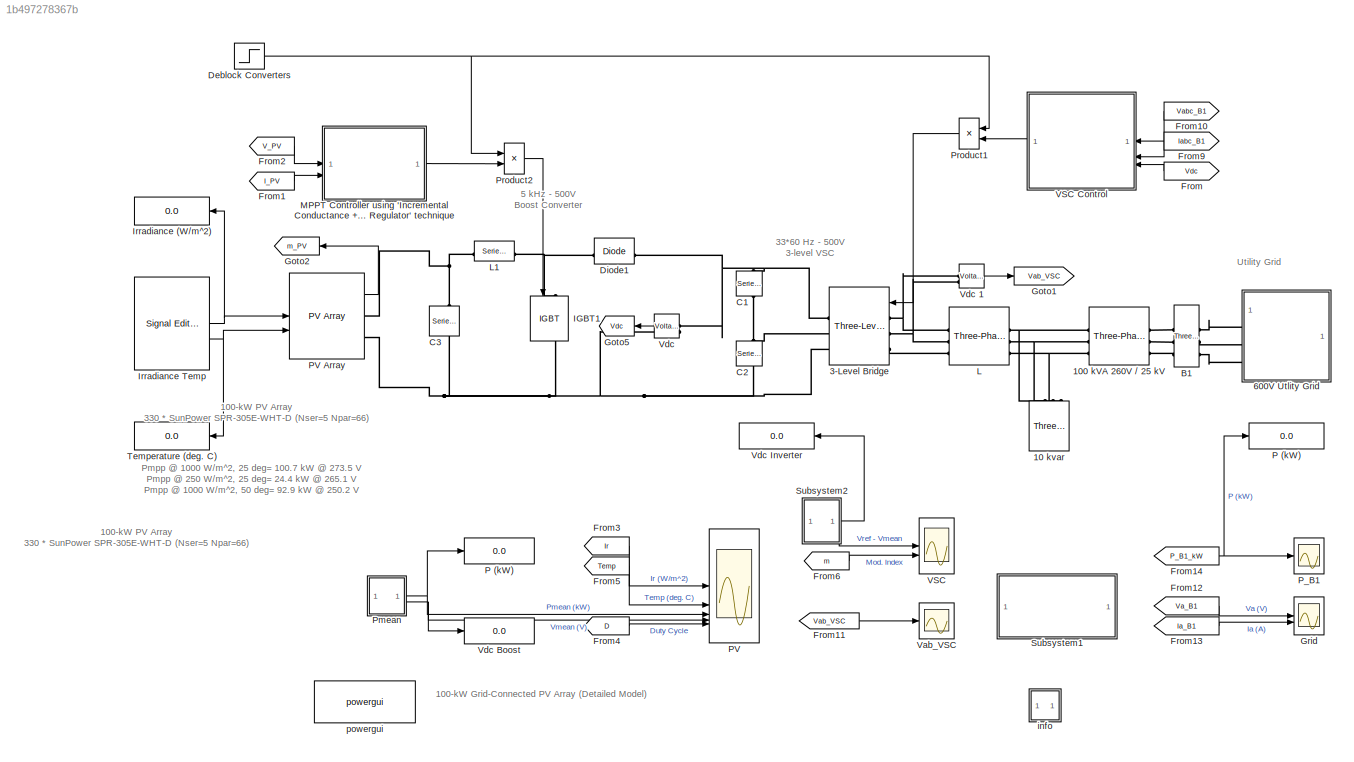
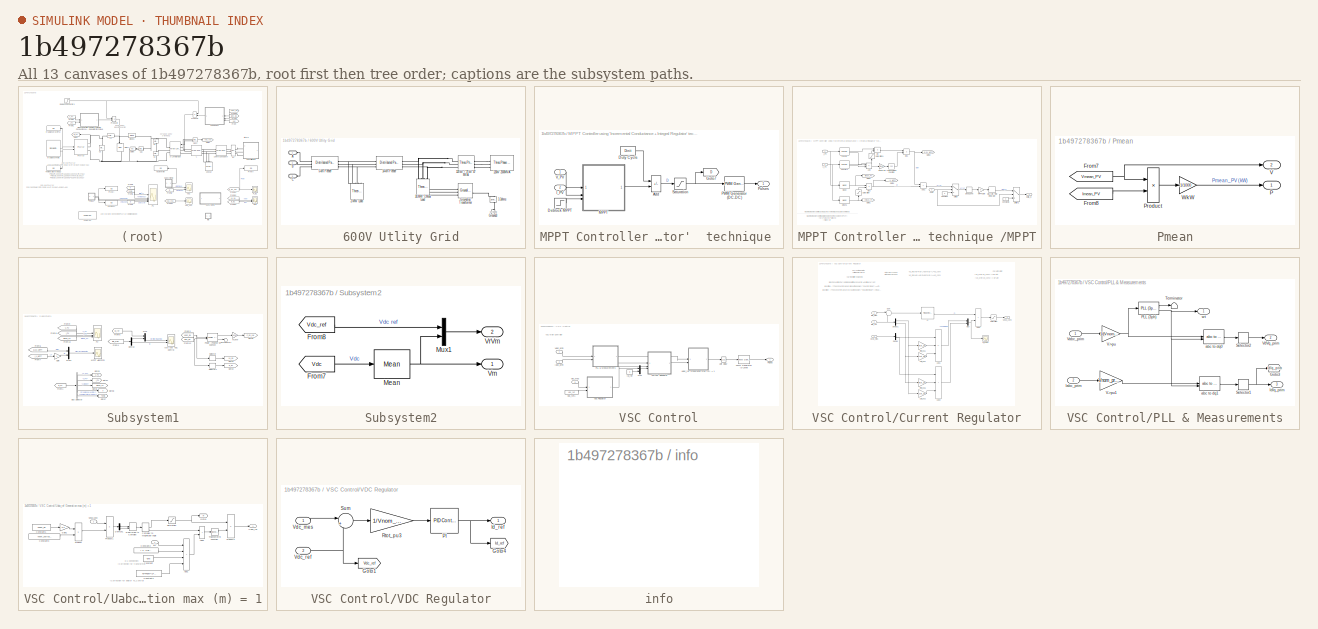
[diagram: thumbnail index - all 13 canvases of the model, root first then tree order]
MODEL slx_1b497278367b
KIND model
CONFIG AbsTol = auto
CONFIG EnableMultiTasking = off
CONFIG FixedStep = auto
CONFIG InitFcn = Ts_Power=1e-6;\nTs_Control=100e-6;
CONFIG MaxStep = auto
CONFIG MinStep = auto
CONFIG PreLoadFcn = Ts_Power=1e-6;\nTs_Control=100e-6;
CONFIG RelTol = 1e-3
CONFIG SampleTimeConstraint = Unconstrained
CONFIG SolverName = FixedStepDiscrete
CONFIG StartTime = 0.0
CONFIG StopTime = 2.5
BLOCK [Reference] 10 kvar  REF=spsThreePhaseSeriesRLCLoadLib/Three-Phase
Series RLC Load
  AttributesFormatString = \n
  NameLocation = right
  SourceBlock = spsThreePhaseSeriesRLCLoadLib/Three-Phase\nSeries RLC Load
  SourceType = Three-Phase Series RLC Load
BLOCK [Reference] 100 kVA 260V // 25 kV  REF=spsThreePhaseTransformerTwoWindingsLib/Three-Phase
Transformer
(Two Windings)
  AttributesFormatString = \n
  SourceBlock = spsThreePhaseTransformerTwoWindingsLib/Three-Phase\nTransformer\n(Two Windings)
  SourceType = Three-Phase Transformer (Two Windings)
BLOCK [Reference] 3-Level Bridge  REF=spsThreeLevelBridgeLib/Three-Level Bridge
  AttributesFormatString = \n
  SourceBlock = spsThreeLevelBridgeLib/Three-Level Bridge
  SourceType = Three-Level Bridge
BLOCK [SubSystem] 600V Utlity Grid
BLOCK [Reference] 600V Utlity Grid/120 kV // 25 kV 47 MVA  REF=spsThreePhaseTransformerTwoWindingsLib/Three-Phase
Transformer
(Two Windings)
  AttributesFormatString = \n
  SourceBlock = spsThreePhaseTransformerTwoWindingsLib/Three-Phase\nTransformer\n(Two Windings)
  SourceType = Three-Phase Transformer (Two Windings)
BLOCK [Reference] 600V Utlity Grid/120kV 2500MVA  REF=spsThreePhaseSourceLib/Three-Phase Source
  SourceBlock = spsThreePhaseSourceLib/Three-Phase Source
  SourceType = Three-Phase Source
BLOCK [Reference] 600V Utlity Grid/14-km Feeder  REF=spsDistributedParametersLineLib/Distributed Parameters Line
  SourceBlock = spsDistributedParametersLineLib/Distributed Parameters Line
  SourceType = Distributed Parameters Line
BLOCK [Reference] 600V Utlity Grid/2-MW Load  REF=spsThreePhaseParallelRLCLoadLib/Three-Phase
Parallel RLC Load
  AttributesFormatString = \n
  NameLocation = left
  SourceBlock = spsThreePhaseParallelRLCLoadLib/Three-Phase\nParallel RLC Load
  SourceType = Three-Phase Parallel RLC Load
BLOCK [Reference] 600V Utlity Grid/3.3ohms   REF=spsSeriesRLCBranchLib/Series RLC Branch
  NameLocation = right
  SourceBlock = spsSeriesRLCBranchLib/Series RLC Branch
  SourceType = Series RLC Branch
BLOCK [Reference] 600V Utlity Grid/30-MW 2-Mvar Load  REF=spsThreePhaseParallelRLCLoadLib/Three-Phase
Parallel RLC Load
  AttributesFormatString = \n
  NameLocation = left
  SourceBlock = spsThreePhaseParallelRLCLoadLib/Three-Phase\nParallel RLC Load
  SourceType = Three-Phase Parallel RLC Load
BLOCK [Reference] 600V Utlity Grid/5-km Feeder  REF=spsDistributedParametersLineLib/Distributed Parameters Line
  SourceBlock = spsDistributedParametersLineLib/Distributed Parameters Line
  SourceType = Distributed Parameters Line
BLOCK [PMIOPort] 600V Utlity Grid/A
  Side = Left
BLOCK [PMIOPort] 600V Utlity Grid/B
  Port = 2
  Side = Left
BLOCK [PMIOPort] 600V Utlity Grid/C
  Port = 3
  Side = Left
BLOCK [Reference] 600V Utlity Grid/Ground3  REF=spsGroundLib/Ground
  AttributesFormatString = \n
  NameLocation = right
  SourceBlock = spsGroundLib/Ground
  SourceType = Ground
BLOCK [Reference] 600V Utlity Grid/Grounding Transformer   REF=spsGroundingTransformerLib/Grounding
Transformer 
  SourceBlock = spsGroundingTransformerLib/Grounding\nTransformer
  SourceType = Grounding Transformer
BLOCK [Reference] B1  REF=spsThreePhaseVIMeasurementLib/Three-Phase
V-I Measurement
  SourceBlock = spsThreePhaseVIMeasurementLib/Three-Phase\nV-I Measurement
  SourceType = Three-Phase VI Measurement
BLOCK [Reference] C1  REF=spsSeriesRLCBranchLib/Series RLC Branch
  AttributesFormatString = \n
  NameLocation = left
  SourceBlock = spsSeriesRLCBranchLib/Series RLC Branch
  SourceType = Series RLC Branch
BLOCK [Reference] C2  REF=spsSeriesRLCBranchLib/Series RLC Branch
  AttributesFormatString = \n
  NameLocation = left
  SourceBlock = spsSeriesRLCBranchLib/Series RLC Branch
  SourceType = Series RLC Branch
BLOCK [Reference] C3  REF=spsSeriesRLCBranchLib/Series RLC Branch
  AttributesFormatString = \n
  NameLocation = left
  SourceBlock = spsSeriesRLCBranchLib/Series RLC Branch
  SourceType = Series RLC Branch
BLOCK [Step] Deblock Converters
  SampleTime = 0
  Time = 0.05
BLOCK [Reference] Diode1  REF=spsDiodeLib/Diode
  SourceBlock = spsDiodeLib/Diode
  SourceType = Diode
BLOCK [From] From
  GotoTag = Vdc
  TagVisibility = global
BLOCK [From] From1
  CloseFcn = tagdialog Close
  GotoTag = I_PV
  TagVisibility = global
BLOCK [From] From10
  CloseFcn = tagdialog Close
  GotoTag = Vabc_B1
  TagVisibility = global
BLOCK [From] From11
  CloseFcn = tagdialog Close
  GotoTag = Vab_VSC
  TagVisibility = global
BLOCK [From] From12
  CloseFcn = tagdialog Close
  GotoTag = Va_B1
  TagVisibility = global
BLOCK [From] From13
  CloseFcn = tagdialog Close
  GotoTag = Ia_B1
  TagVisibility = global
BLOCK [From] From14
  CloseFcn = tagdialog Close
  GotoTag = P_B1_kW
  TagVisibility = global
BLOCK [From] From2
  CloseFcn = tagdialog Close
  GotoTag = V_PV
  TagVisibility = global
BLOCK [From] From3
  CloseFcn = tagdialog Close
  GotoTag = Ir
  TagVisibility = global
BLOCK [From] From4
  CloseFcn = tagdialog Close
  GotoTag = D
  TagVisibility = global
BLOCK [From] From5
  CloseFcn = tagdialog Close
  GotoTag = Temp
  TagVisibility = global
BLOCK [From] From6
  CloseFcn = tagdialog Close
  GotoTag = m
  TagVisibility = global
BLOCK [From] From9
  CloseFcn = tagdialog Close
  GotoTag = Iabc_B1
  TagVisibility = global
BLOCK [Goto] Goto1
  GotoTag = Vab_VSC
  TagVisibility = global
BLOCK [Goto] Goto2
  GotoTag = m_PV
  TagVisibility = global
BLOCK [Goto] Goto5
  GotoTag = Vdc
  TagVisibility = global
BLOCK [Scope] Grid
  Floating = off
  NumInputPorts = 2
  ScopeSpecificationString = Simulink.scopes.TimeScopeBlockCfg('CurrentConfiguration', extmgr.ConfigurationSet(extmgr.Configuration('Core','General UI',true),extmgr.Configuration('Core','Source UI',true),extmgr.Configuration('Sources','WiredSimulink',true,'DataLoggingDecimation','20','DataLoggingDecimateData',true,'DataLoggingSaveFormat','Array'),extmgr.Configuration('Visuals','Time Domain',true,'SerializedDisplays',{struct('...<+2332ch>
BLOCK [Reference] IGBT1  REF=spsIGBTLib/IGBT
  NameLocation = left
  SourceBlock = spsIGBTLib/IGBT
  SourceType = IGBT
BLOCK [Display] Irradiance (W//m^2)
  Decimation = 1000
  Format = bank
BLOCK [Reference] Irradiance Temp  REF=SignalEditorBlockLib/Signal Editor
  SourceBlock = SignalEditorBlockLib/Signal Editor
  SourceType = SignalEditor
  UserDataPersistent = on
BLOCK [Reference] L  REF=spsThreePhaseSeriesRLCBranchLib/Three-Phase
Series RLC Branch
  AttributesFormatString = \n
  SourceBlock = spsThreePhaseSeriesRLCBranchLib/Three-Phase\nSeries RLC Branch
  SourceType = Three-Phase Series RLC Branch
BLOCK [Reference] L1  REF=spsSeriesRLCBranchLib/Series RLC Branch
  SourceBlock = spsSeriesRLCBranchLib/Series RLC Branch
  SourceType = Series RLC Branch
BLOCK [SubSystem] MPPT Controller using  'Incremental Conductance + Integral Regulator'  technique 
  NameLocation = top
BLOCK [Sum] MPPT Controller using  'Incremental Conductance + Integral Regulator'  technique /Add
  IconShape = rectangular
  Inputs = +-
BLOCK [Step] MPPT Controller using  'Incremental Conductance + Integral Regulator'  technique /Deblock MPPT
  SampleTime = 0
  Time = 0.4
BLOCK [Constant] MPPT Controller using  'Incremental Conductance + Integral Regulator'  technique /Duty Cycle
  NameLocation = top
  Value = Dinit
BLOCK [Goto] MPPT Controller using  'Incremental Conductance + Integral Regulator'  technique /Goto7
  GotoTag = D
  TagVisibility = global
BLOCK [Inport] MPPT Controller using  'Incremental Conductance + Integral Regulator'  technique /I_PV
  Port = 2
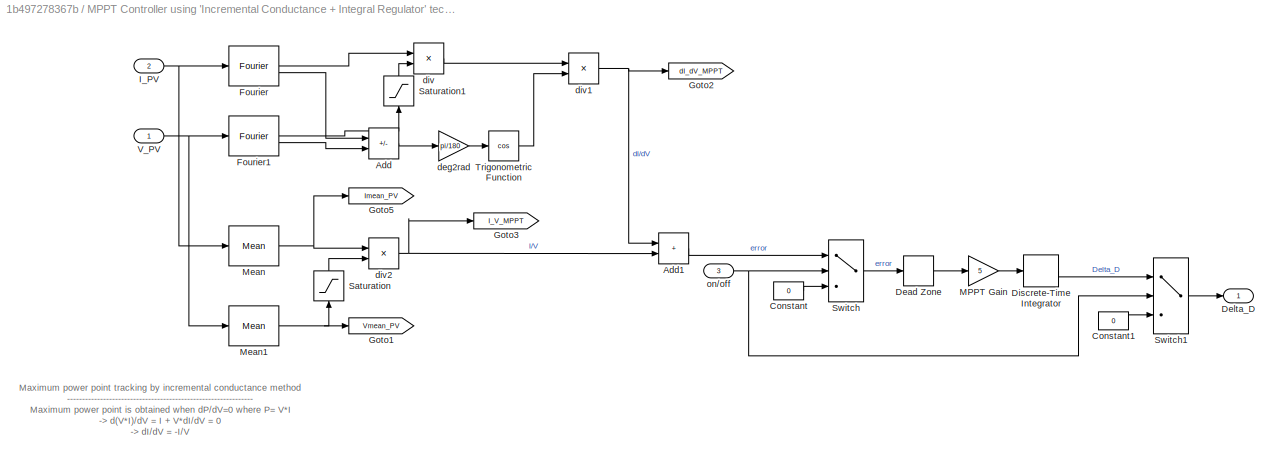
BLOCK [SubSystem] MPPT Controller using  'Incremental Conductance + Integral Regulator'  technique /MPPT
BLOCK [Sum] MPPT Controller using  'Incremental Conductance + Integral Regulator'  technique /MPPT/Add
  IconShape = rectangular
  Inputs = +-
BLOCK [Sum] MPPT Controller using  'Incremental Conductance + Integral Regulator'  technique /MPPT/Add1
  IconShape = rectangular
BLOCK [Constant] MPPT Controller using  'Incremental Conductance + Integral Regulator'  technique /MPPT/Constant
  Value = 0
BLOCK [Constant] MPPT Controller using  'Incremental Conductance + Integral Regulator'  technique /MPPT/Constant1
  Value = 0
BLOCK [DeadZone] MPPT Controller using  'Incremental Conductance + Integral Regulator'  technique /MPPT/Dead Zone
  LowerValue = -0.05
  UpperValue = 0.05
BLOCK [Outport] MPPT Controller using  'Incremental Conductance + Integral Regulator'  technique /MPPT/Delta_D
  VectorParamsAs1DForOutWhenUnconnected = off
BLOCK [DiscreteIntegrator] MPPT Controller using  'Incremental Conductance + Integral Regulator'  technique /MPPT/Discrete-Time Integrator
  ICPrevOutput = DiscIntNeverNeededParam
  ICPrevScaledInput = DiscIntNeverNeededParam
  LimitOutput = on
  LowerSaturationLimit = -1
  SampleTime = Ts_Control
  UpperSaturationLimit = 1
BLOCK [Reference] MPPT Controller using  'Incremental Conductance + Integral Regulator'  technique /MPPT/Fourier  REF=spsFourierLib/Fourier
  SourceBlock = spsFourierLib/Fourier
  SourceType = Fourier
BLOCK [Reference] MPPT Controller using  'Incremental Conductance + Integral Regulator'  technique /MPPT/Fourier1  REF=spsFourierLib/Fourier
  SourceBlock = spsFourierLib/Fourier
  SourceType = Fourier
BLOCK [Goto] MPPT Controller using  'Incremental Conductance + Integral Regulator'  technique /MPPT/Goto1
  GotoTag = Vmean_PV
  TagVisibility = global
BLOCK [Goto] MPPT Controller using  'Incremental Conductance + Integral Regulator'  technique /MPPT/Goto2
  GotoTag = dI_dV_MPPT
  TagVisibility = global
BLOCK [Goto] MPPT Controller using  'Incremental Conductance + Integral Regulator'  technique /MPPT/Goto3
  GotoTag = I_V_MPPT
  TagVisibility = global
BLOCK [Goto] MPPT Controller using  'Incremental Conductance + Integral Regulator'  technique /MPPT/Goto5
  GotoTag = Imean_PV
  TagVisibility = global
BLOCK [Inport] MPPT Controller using  'Incremental Conductance + Integral Regulator'  technique /MPPT/I_PV
  Port = 2
BLOCK [Gain] MPPT Controller using  'Incremental Conductance + Integral Regulator'  technique /MPPT/MPPT Gain
  Gain = 5
BLOCK [Reference] MPPT Controller using  'Incremental Conductance + Integral Regulator'  technique /MPPT/Mean  REF=spsMeanLib/Mean
  SourceBlock = spsMeanLib/Mean
  SourceType = Mean
BLOCK [Reference] MPPT Controller using  'Incremental Conductance + Integral Regulator'  technique /MPPT/Mean1  REF=spsMeanLib/Mean
  SourceBlock = spsMeanLib/Mean
  SourceType = Mean
BLOCK [Saturate] MPPT Controller using  'Incremental Conductance + Integral Regulator'  technique /MPPT/Saturation
  LowerLimit = eps
  NameLocation = right
  UpperLimit = inf
BLOCK [Saturate] MPPT Controller using  'Incremental Conductance + Integral Regulator'  technique /MPPT/Saturation1
  LowerLimit = eps
  NameLocation = right
  UpperLimit = inf
BLOCK [Switch] MPPT Controller using  'Incremental Conductance + Integral Regulator'  technique /MPPT/Switch
  InputSameDT = off
  SaturateOnIntegerOverflow = off
  Threshold = 0.5
BLOCK [Switch] MPPT Controller using  'Incremental Conductance + Integral Regulator'  technique /MPPT/Switch1
  InputSameDT = off
  SaturateOnIntegerOverflow = off
  Threshold = 0.5
BLOCK [Trigonometry] MPPT Controller using  'Incremental Conductance + Integral Regulator'  technique /MPPT/Trigonometric Function
  Operator = cos
BLOCK [Inport] MPPT Controller using  'Incremental Conductance + Integral Regulator'  technique /MPPT/V_PV
BLOCK [Gain] MPPT Controller using  'Incremental Conductance + Integral Regulator'  technique /MPPT/deg2rad
  Gain = pi/180
BLOCK [Product] MPPT Controller using  'Incremental Conductance + Integral Regulator'  technique /MPPT/div
  Inputs = */
  RndMeth = Zero
BLOCK [Product] MPPT Controller using  'Incremental Conductance + Integral Regulator'  technique /MPPT/div1
  Inputs = **
  RndMeth = Zero
BLOCK [Product] MPPT Controller using  'Incremental Conductance + Integral Regulator'  technique /MPPT/div2
  Inputs = */
  RndMeth = Zero
BLOCK [Inport] MPPT Controller using  'Incremental Conductance + Integral Regulator'  technique /MPPT/on//off
  Port = 3
BLOCK [Reference] MPPT Controller using  'Incremental Conductance + Integral Regulator'  technique /PWM Generator (DC-DC)  REF=spsPWMGeneratorDCDCLib/PWM Generator
(DC-DC)
  SourceBlock = spsPWMGeneratorDCDCLib/PWM Generator\n(DC-DC)
  SourceType = PWM Generator (DC-DC)
BLOCK [Outport] MPPT Controller using  'Incremental Conductance + Integral Regulator'  technique /Pulses
  VectorParamsAs1DForOutWhenUnconnected = off
BLOCK [Saturate] MPPT Controller using  'Incremental Conductance + Integral Regulator'  technique /Saturation
  LowerLimit = 0
  UpperLimit = 1
BLOCK [Inport] MPPT Controller using  'Incremental Conductance + Integral Regulator'  technique /V_PV
BLOCK [Display] P (kW)
  Decimation = 2000
  Format = bank
BLOCK [Display] P (kW) 
  Decimation = 2000
  Format = bank
BLOCK [Scope] PV
  Floating = off
  NumInputPorts = 5
  ScopeSpecificationString = Simulink.scopes.TimeScopeBlockCfg('CurrentConfiguration', extmgr.ConfigurationSet(extmgr.Configuration('Core','General UI',true),extmgr.Configuration('Core','Source UI',true),extmgr.Configuration('Sources','WiredSimulink',true,'DataLoggingDecimation','100','DataLoggingDecimateData',true,'DataLoggingSaveFormat','Array'),extmgr.Configuration('Visuals','Time Domain',true,'SerializedDisplays',{struct(...<+4421ch>
BLOCK [Reference] PV Array  REF=spsPVArrayLib/PV Array
  SourceBlock = spsPVArrayLib/PV Array
  SourceType = PV array
BLOCK [Scope] P_B1
  Floating = off
  NumInputPorts = 1
  ScopeSpecificationString = Simulink.scopes.TimeScopeBlockCfg('CurrentConfiguration', extmgr.ConfigurationSet(extmgr.Configuration('Core','General UI',true),extmgr.Configuration('Core','Source UI',true),extmgr.Configuration('Sources','WiredSimulink',true,'DataLoggingDecimation','100','DataLoggingDecimateData',true,'DataLoggingSaveFormat','Array'),extmgr.Configuration('Visuals','Time Domain',true,'SerializedDisplays',{struct(...<+1655ch>
BLOCK [SubSystem] Pmean
BLOCK [From] Pmean/From7
  GotoTag = Vmean_PV
  TagVisibility = global
BLOCK [From] Pmean/From8
  GotoTag = Imean_PV
  TagVisibility = global
BLOCK [Outport] Pmean/P
  VectorParamsAs1DForOutWhenUnconnected = off
BLOCK [Product] Pmean/Product
  RndMeth = Zero
BLOCK [Outport] Pmean/V
  Port = 2
  VectorParamsAs1DForOutWhenUnconnected = off
BLOCK [Gain] Pmean/WkW
  Gain = 1/1000
BLOCK [Product] Product1
  RndMeth = Zero
BLOCK [Product] Product2
  RndMeth = Zero
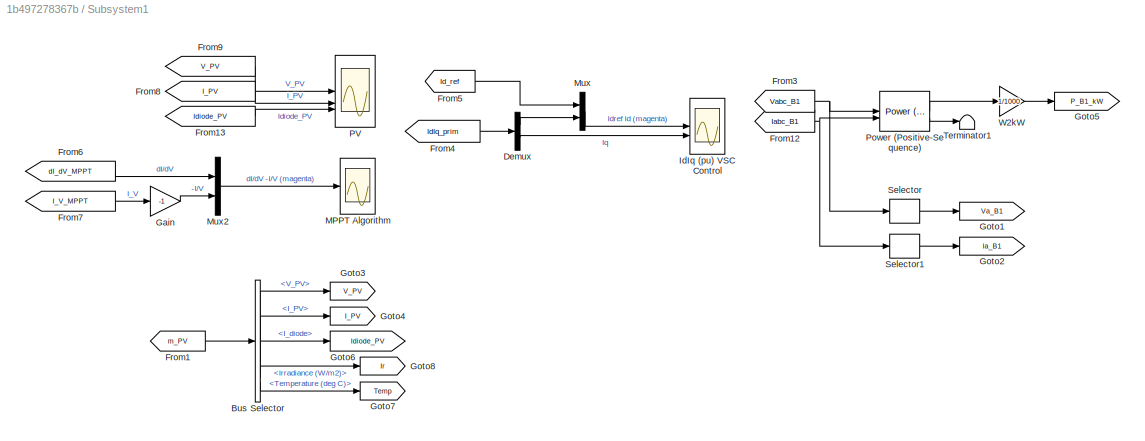
BLOCK [SubSystem] Subsystem1
  NameLocation = top
BLOCK [BusSelector] Subsystem1/Bus Selector
  OutputSignals = V_PV,I_PV,I_diode,Irradiance (W/m2),Temperature (deg C)
BLOCK [Demux] Subsystem1/Demux
  Outputs = 2
BLOCK [From] Subsystem1/From1
  GotoTag = m_PV
  TagVisibility = global
BLOCK [From] Subsystem1/From12
  CloseFcn = tagdialog Close
  GotoTag = Iabc_B1
  TagVisibility = global
BLOCK [From] Subsystem1/From13
  GotoTag = Idiode_PV
  TagVisibility = global
BLOCK [From] Subsystem1/From3
  CloseFcn = tagdialog Close
  GotoTag = Vabc_B1
  TagVisibility = global
BLOCK [From] Subsystem1/From4
  CloseFcn = tagdialog Close
  GotoTag = IdIq_prim
  TagVisibility = global
BLOCK [From] Subsystem1/From5
  CloseFcn = tagdialog Close
  GotoTag = Id_ref
  TagVisibility = global
BLOCK [From] Subsystem1/From6
  GotoTag = dI_dV_MPPT
  TagVisibility = global
BLOCK [From] Subsystem1/From7
  GotoTag = I_V_MPPT
  TagVisibility = global
BLOCK [From] Subsystem1/From8
  GotoTag = I_PV
  TagVisibility = global
BLOCK [From] Subsystem1/From9
  GotoTag = V_PV
  TagVisibility = global
BLOCK [Gain] Subsystem1/Gain
  Gain = -1
BLOCK [Goto] Subsystem1/Goto1
  GotoTag = Va_B1
  TagVisibility = global
BLOCK [Goto] Subsystem1/Goto2
  GotoTag = Ia_B1
  TagVisibility = global
BLOCK [Goto] Subsystem1/Goto3
  GotoTag = V_PV
  TagVisibility = global
BLOCK [Goto] Subsystem1/Goto4
  GotoTag = I_PV
  TagVisibility = global
BLOCK [Goto] Subsystem1/Goto5
  GotoTag = P_B1_kW
  TagVisibility = global
BLOCK [Goto] Subsystem1/Goto6
  GotoTag = Idiode_PV
  TagVisibility = global
BLOCK [Goto] Subsystem1/Goto7
  GotoTag = Temp
  TagVisibility = global
BLOCK [Goto] Subsystem1/Goto8
  GotoTag = Ir
  TagVisibility = global
BLOCK [Scope] Subsystem1/IdIq (pu) VSC Control
  Floating = off
  NumInputPorts = 2
  ScopeSpecificationString = C++SS(StrPVP('Location','[188, 365, 760, 912]'),StrPVP('Open','off'),MxPVP('AxesTitles',54,'struct(''axes1'',''%<SignalLabel>'',''axes2'',''%<SignalLabel>'')'),MxPVP('ScopeGraphics',57,'struct(''FigureColor'',''[0.5 0.5 0.5]'',''AxesColor'',''[0 0 0]'',''AxesTickColor'',''[1 1 1]'',''LineColors'',''[1 1 0;1 0 1;0 1 1;1 0 0;0 1 0;0 0 1]'',''LineStyles'',''-|-|-|-|-|-'',''LineWidths'',''[0.5 0.5 0.5...<+319ch>
BLOCK [Scope] Subsystem1/MPPT Algorithm
  Floating = off
  NumInputPorts = 1
  ScopeSpecificationString = C++SS(StrPVP('Location','[188, 365, 512, 604]'),StrPVP('Open','off'),MxPVP('AxesTitles',54,'struct(''axes1'',''%<SignalLabel>'')'),MxPVP('ScopeGraphics',57,'struct(''FigureColor'',''[0.5 0.5 0.5]'',''AxesColor'',''[0 0 0]'',''AxesTickColor'',''[1 1 1]'',''LineColors'',''[1 1 0;1 0 1;0 1 1;1 0 0;0 1 0;0 0 1]'',''LineStyles'',''-|-|-|-|-|-'',''LineWidths'',''[0.5 0.5 0.5 0.5 0.5 0.5]'',''MarkerStyle...<+246ch>
BLOCK [Mux] Subsystem1/Mux
  DisplayOption = bar
  Inputs = 2
BLOCK [Mux] Subsystem1/Mux2
  DisplayOption = bar
  Inputs = 2
BLOCK [Scope] Subsystem1/PV
  Floating = off
  NumInputPorts = 3
  ScopeSpecificationString = C++SS(StrPVP('Location','[188, 365, 635, 838]'),StrPVP('Open','off'),MxPVP('AxesTitles',54,'struct(''axes1'',''%<SignalLabel>'',''axes2'',''%<SignalLabel>'',''axes3'',''%<SignalLabel>'')'),MxPVP('ScopeGraphics',57,'struct(''FigureColor'',''[0.5 0.5 0.5]'',''AxesColor'',''[0 0 0]'',''AxesTickColor'',''[1 1 1]'',''LineColors'',''[1 1 0;1 0 1;0 1 1;1 0 0;0 1 0;0 0 1]'',''LineStyles'',''-|-|-|-|-|-'',...<+353ch>
BLOCK [Reference] Subsystem1/Power (Positive-Sequence)  REF=spsPowerPositiveSequenceLib/Power
(Positive-Sequence)
  SourceBlock = spsPowerPositiveSequenceLib/Power\n(Positive-Sequence)
  SourceType = Power (Positive-Sequence)
BLOCK [Selector] Subsystem1/Selector
  IndexOptions = Index vector (dialog)
  Indices = [1]
  InputPortWidth = 3
  OutputSizes = 1
BLOCK [Selector] Subsystem1/Selector1
  IndexOptions = Index vector (dialog)
  Indices = [1]
  InputPortWidth = 3
  OutputSizes = 1
BLOCK [Terminator] Subsystem1/Terminator1
  NameLocation = top
BLOCK [Gain] Subsystem1/W2kW
  Gain = 1/1000
BLOCK [SubSystem] Subsystem2
BLOCK [From] Subsystem2/From7
  CloseFcn = tagdialog Close
  GotoTag = Vdc
  TagVisibility = global
BLOCK [From] Subsystem2/From8
  CloseFcn = tagdialog Close
  GotoTag = Vdc_ref
  TagVisibility = global
BLOCK [Reference] Subsystem2/Mean  REF=spsMeanLib/Mean
  SourceBlock = spsMeanLib/Mean
  SourceType = Mean
BLOCK [Mux] Subsystem2/Mux1
  DisplayOption = bar
  Inputs = 2
BLOCK [Outport] Subsystem2/Vm
  VectorParamsAs1DForOutWhenUnconnected = off
BLOCK [Outport] Subsystem2/VrVm
  Port = 2
  VectorParamsAs1DForOutWhenUnconnected = off
BLOCK [Display] Temperature (deg. C)
  Decimation = 1000
  Format = bank
BLOCK [Scope] VSC
  Floating = off
  NumInputPorts = 2
  ScopeSpecificationString = Simulink.scopes.TimeScopeBlockCfg('CurrentConfiguration', extmgr.ConfigurationSet(extmgr.Configuration('Core','General UI',true),extmgr.Configuration('Core','Source UI',true),extmgr.Configuration('Sources','WiredSimulink',true,'DataLoggingDecimation','100','DataLoggingDecimateData',true,'DataLoggingSaveFormat','Array'),extmgr.Configuration('Visuals','Time Domain',true,'SerializedDisplays',{struct(...<+2360ch>
BLOCK [SubSystem] VSC Control
  NameLocation = top
BLOCK [SubSystem] VSC Control/Current Regulator
BLOCK [Sum] VSC Control/Current Regulator/Add1
  IconShape = rectangular
  Inputs = ++-
BLOCK [Sum] VSC Control/Current Regulator/Add2
  IconShape = rectangular
BLOCK [Sum] VSC Control/Current Regulator/Add3
  IconShape = rectangular
  Inputs = +++
BLOCK [Demux] VSC Control/Current Regulator/Demux
  Outputs = 2
BLOCK [Demux] VSC Control/Current Regulator/Demux1
  Outputs = 2
BLOCK [Inport] VSC Control/Current Regulator/IdIq_mes
  Port = 2
  PortDimensions = 2
BLOCK [Inport] VSC Control/Current Regulator/IdIq_ref
  Port = 3
  PortDimensions = 2
BLOCK [Gain] VSC Control/Current Regulator/Ltot_pu1
  Gain = Ltot_pu
  OutDataTypeStr = Inherit: Same as input
  ParamDataTypeStr = Inherit: Same as input
  SaturateOnIntegerOverflow = on
BLOCK [Gain] VSC Control/Current Regulator/Ltot_pu2
  Gain = Ltot_pu
  OutDataTypeStr = Inherit: Same as input
  ParamDataTypeStr = Inherit: Same as input
  SaturateOnIntegerOverflow = on
BLOCK [Mux] VSC Control/Current Regulator/Mux
  DisplayOption = bar
  Inputs = 2
BLOCK [Reference] VSC Control/Current Regulator/PI  REF=slpidlib/PID Controller
  SourceBlock = slpidlib/PID Controller
  SourceType = PID 1dof
BLOCK [Scope] VSC Control/Current Regulator/PI_Ireg1
  Floating = off
  NumInputPorts = 1
  ScopeSpecificationString = C++SS(StrPVP('Location','[188, 365, 512, 604]'),StrPVP('Open','off'),MxPVP('AxesTitles',54,'struct(''axes1'',''%<SignalLabel>'')'),StrPVP('ShowLegends','off'),StrPVP('LimitDataPoints','off'),StrPVP('ScrollMode','off'),StrPVP('DataFormat','Array'),StrPVP('Decimation','1'),StrPVP('BlockParamSampleInput','off'))
BLOCK [Gain] VSC Control/Current Regulator/Rtot_pu1
  Gain = Rtot_pu
  NameLocation = top
  OutDataTypeStr = Inherit: Same as input
  ParamDataTypeStr = Inherit: Same as input
  SaturateOnIntegerOverflow = on
BLOCK [Gain] VSC Control/Current Regulator/Rtot_pu5
  Gain = Rtot_pu
  NameLocation = top
  OutDataTypeStr = Inherit: Same as input
  ParamDataTypeStr = Inherit: Same as input
  SaturateOnIntegerOverflow = on
BLOCK [Saturate] VSC Control/Current Regulator/Saturation
  LowerLimit = -2
  UpperLimit = 2
BLOCK [Sum] VSC Control/Current Regulator/Sum
  Inputs = |-+
BLOCK [Outport] VSC Control/Current Regulator/VdVq_conv
  VectorParamsAs1DForOutWhenUnconnected = off
BLOCK [Inport] VSC Control/Current Regulator/VdVq_mes
  PortDimensions = 2
BLOCK [Inport] VSC Control/Iabc_prim
  Port = 2
  PortDimensions = 3
BLOCK [Constant] VSC Control/Iq_ref
  Value = 0
BLOCK [Mux] VSC Control/Mux
  DisplayOption = bar
  Inputs = 2
BLOCK [SubSystem] VSC Control/PLL & Measurements
BLOCK [Goto] VSC Control/PLL & Measurements/Goto3
  GotoTag = IdIq_prim
  TagVisibility = global
BLOCK [Inport] VSC Control/PLL & Measurements/Iabc_prim
  Port = 2
BLOCK [Outport] VSC Control/PLL & Measurements/IdIq_prim
  Port = 3
  VectorParamsAs1DForOutWhenUnconnected = off
BLOCK [Reference] VSC Control/PLL & Measurements/PLL (3ph)  REF=spsPLL3phLib/PLL
(3ph)
  SourceBlock = spsPLL3phLib/PLL\n(3ph)
  SourceType = PLL (3ph)
BLOCK [Selector] VSC Control/PLL & Measurements/Selector1
  IndexOptions = Index vector (dialog)
  Indices = [1 2]
  InputPortWidth = 3
  OutputSizes = 1
BLOCK [Selector] VSC Control/PLL & Measurements/Selector2
  IndexOptions = Index vector (dialog)
  Indices = [1 2]
  InputPortWidth = 3
  OutputSizes = 1
BLOCK [Terminator] VSC Control/PLL & Measurements/Terminator
BLOCK [Gain] VSC Control/PLL & Measurements/V->pu
  Gain = 1/(Vnom_prim*sqrt(2)/sqrt(3))
  OutDataTypeStr = Inherit: Same as input
  ParamDataTypeStr = Inherit: Same as input
  SaturateOnIntegerOverflow = on
BLOCK [Gain] VSC Control/PLL & Measurements/V->pu1
  Gain = Vnom_prim*sqrt(3)/Pnom/sqrt(2)
  OutDataTypeStr = Inherit: Same as input
  ParamDataTypeStr = Inherit: Same as input
  SaturateOnIntegerOverflow = on
BLOCK [Inport] VSC Control/PLL & Measurements/Vabc_prim
BLOCK [Outport] VSC Control/PLL & Measurements/VdVq_prim
  Port = 2
  VectorParamsAs1DForOutWhenUnconnected = off
BLOCK [Reference] VSC Control/PLL & Measurements/abc to dq0  REF=spsabctodq0Lib/abc to dq0
  SourceBlock = spsabctodq0Lib/abc to dq0
  SourceType = abc to dq0 Transformation
BLOCK [Reference] VSC Control/PLL & Measurements/abc to dq1  REF=spsabctodq0Lib/abc to dq0
  SourceBlock = spsabctodq0Lib/abc to dq0
  SourceType = abc to dq0 Transformation
BLOCK [Outport] VSC Control/PLL & Measurements/wt
  VectorParamsAs1DForOutWhenUnconnected = off
BLOCK [Reference] VSC Control/PWM Generator (3-Level)  REF=spsPWMGenerator3LevelLib/PWM Generator
(3-Level)
  SourceBlock = spsPWMGenerator3LevelLib/PWM Generator\n(3-Level)
  SourceType = PWM Generator (3-Level)
BLOCK [Outport] VSC Control/Pulses
  NameLocation = top
  VectorParamsAs1DForOutWhenUnconnected = off
BLOCK [SubSystem] VSC Control/Uabc_ref Generation max (m) = 1
BLOCK [Sum] VSC Control/Uabc_ref Generation max (m) = 1/Add1
  IconShape = rectangular
  Inputs = ++++
BLOCK [Sum] VSC Control/Uabc_ref Generation max (m) = 1/Add2
  IconShape = rectangular
BLOCK [ComplexToMagnitudeAngle] VSC Control/Uabc_ref Generation max (m) = 1/Complex to Magnitude-Angle
BLOCK [Constant] VSC Control/Uabc_ref Generation max (m) = 1/Constant
  Value = -pi/6
BLOCK [Constant] VSC Control/Uabc_ref Generation max (m) = 1/Constant1
  Value = Vnom_dc
BLOCK [Constant] VSC Control/Uabc_ref Generation max (m) = 1/Constant2
  Value = [ 0  -2*pi/3  2*pi/3  ]
BLOCK [Constant] VSC Control/Uabc_ref Generation max (m) = 1/Constant3
  Value = Vnom_sec*sqrt(2)/sqrt(3)
BLOCK [Constant] VSC Control/Uabc_ref Generation max (m) = 1/Constant4
  Value = Ts*Fnom*(2*pi)
BLOCK [Demux] VSC Control/Uabc_ref Generation max (m) = 1/Demux1
  Outputs = 2
BLOCK [Gain] VSC Control/Uabc_ref Generation max (m) = 1/Gain1
  Gain = 1/2
BLOCK [Goto] VSC Control/Uabc_ref Generation max (m) = 1/Goto1
  GotoTag = m
  TagVisibility = global
BLOCK [Product] VSC Control/Uabc_ref Generation max (m) = 1/Product
  Inputs = */
  RndMeth = Zero
BLOCK [Product] VSC Control/Uabc_ref Generation max (m) = 1/Product1
  Inputs = */
  RndMeth = Zero
BLOCK [Product] VSC Control/Uabc_ref Generation max (m) = 1/Product2
  Inputs = **
  RndMeth = Zero
BLOCK [RealImagToComplex] VSC Control/Uabc_ref Generation max (m) = 1/Real-Imag to Complex
BLOCK [Saturate] VSC Control/Uabc_ref Generation max (m) = 1/Saturation
  LowerLimit = 0
  UpperLimit = 1
BLOCK [Trigonometry] VSC Control/Uabc_ref Generation max (m) = 1/Trigonometric Function
BLOCK [Outport] VSC Control/Uabc_ref Generation max (m) = 1/Uabc_ref
  VectorParamsAs1DForOutWhenUnconnected = off
BLOCK [Inport] VSC Control/Uabc_ref Generation max (m) = 1/VdVq_conv
  Port = 2
BLOCK [Inport] VSC Control/Uabc_ref Generation max (m) = 1/wt
BLOCK [UnitDelay] VSC Control/Unit Delay
  HasFrameUpgradeWarning = on
  SampleTime = Ts_Control
BLOCK [SubSystem] VSC Control/VDC Regulator
BLOCK [Goto] VSC Control/VDC Regulator/Goto1
  GotoTag = Vdc_ref
  TagVisibility = global
BLOCK [Goto] VSC Control/VDC Regulator/Goto4
  GotoTag = Id_ref
  TagVisibility = global
BLOCK [Outport] VSC Control/VDC Regulator/Id_ref
  InitialOutput = 0
  SampleTime = Ts
  VectorParamsAs1DForOutWhenUnconnected = off
BLOCK [Reference] VSC Control/VDC Regulator/PI  REF=slpidlib/PID Controller
  SourceBlock = slpidlib/PID Controller
  SourceType = PID 1dof
BLOCK [Gain] VSC Control/VDC Regulator/Rtot_pu3
  Gain = 1/Vnom_dc
  OutDataTypeStr = Inherit: Same as input
  ParamDataTypeStr = Inherit: Same as input
  SaturateOnIntegerOverflow = on
BLOCK [Sum] VSC Control/VDC Regulator/Sum
  Inputs = |+-
BLOCK [Inport] VSC Control/VDC Regulator/Vdc_mes
  PortDimensions = 1
BLOCK [Inport] VSC Control/VDC Regulator/Vdc_ref
  Port = 2
  PortDimensions = 1
BLOCK [Inport] VSC Control/Vabc_prim
  PortDimensions = 3
BLOCK [Inport] VSC Control/Vdc_mes
  Port = 3
  PortDimensions = 1
BLOCK [Constant] VSC Control/Vdc_ref1
  Value = Vdc_ref
BLOCK [Scope] Vab_VSC
  Floating = off
  NumInputPorts = 1
  ScopeSpecificationString = Simulink.scopes.TimeScopeBlockCfg('CurrentConfiguration', extmgr.ConfigurationSet(extmgr.Configuration('Core','General UI',true),extmgr.Configuration('Core','Source UI',true),extmgr.Configuration('Sources','WiredSimulink',true,'DataLoggingDecimation','10','DataLoggingDecimateData',true,'DataLoggingSaveFormat','Array'),extmgr.Configuration('Visuals','Time Domain',true,'SerializedDisplays',{struct('...<+1650ch>
BLOCK [Reference] Vdc   REF=spsVoltageMeasurementLib/Voltage Measurement
  AttributesFormatString = \n
  NameLocation = top
  SourceBlock = spsVoltageMeasurementLib/Voltage Measurement
  SourceType = Voltage Measurement
  Tag = PoWeRsYsTeMmEaSuReMeNt
BLOCK [Reference] Vdc 1  REF=spsVoltageMeasurementLib/Voltage Measurement
  AttributesFormatString = \n
  NameLocation = top
  SourceBlock = spsVoltageMeasurementLib/Voltage Measurement
  SourceType = Voltage Measurement
  Tag = PoWeRsYsTeMmEaSuReMeNt
BLOCK [Display] Vdc Boost
  Decimation = 2000
  Format = bank
BLOCK [Display] Vdc Inverter
  Decimation = 2000
  Format = bank
BLOCK [SubSystem] info
  OpenFcn = showExample("simscapeelectricalsps/PVArrayGridExample")
BLOCK [Reference] powergui  REF=spspowerguiLib/powergui
  Priority = 1
  SourceBlock = spspowerguiLib/powergui
  SourceType = PSB option menu block
ANNOTATION (root): Utility Grid
ANNOTATION (root): 100-kW PV Array 330 * SunPower SPR-305E-WHT-D (Nser=5 Npar=66)
ANNOTATION (root): 100-kW Grid-Connected PV Array (Detailed Model)
ANNOTATION (root): 33*60 Hz - 500V 3-level VSC
ANNOTATION (root): 5 kHz - 500V Boost Converter
ANNOTATION (root): Pmpp @ 1000 W/m^2, 25 deg= 100.7 kW @ 273.5 V Pmpp @ 250 W/m^2, 25 deg= 24.4 kW @ 265.1 V Pmpp @ 1000 W/m^2, 50 deg= 92.9 kW @ 250.2 V
ANNOTATION MPPT Controller using  'Incremental Conductance + Integral Regulator'  technique /MPPT: Maximum power point tracking by incremental conductance method -------------------------------------------------------------- Maximum power point is obtained when dP/dV=0 where P= V*I -> d(V*I)/dV = I + V*dI/dV = 0 -> dI/dV = -I/V dI, dV = fundamental components of I and V ripples measured with a sliding time window T_MPPT I , V = mean values of V and I measured with a sliding time window T_MPPT T...<+96ch>
ANNOTATION VSC Control: VSC Main Controller
ANNOTATION VSC Control/Current Regulator: (Vd_prim - Vd_conv) ~= + Iq * Ltot
ANNOTATION VSC Control/Current Regulator: (Vq_prim - Vq_conv) ~ = - Id * Ltot
ANNOTATION VSC Control/Current Regulator: Current Regulator (with feedforward)
ANNOTATION VSC Control/Current Regulator: For Ltot >> Rtot :
ANNOTATION VSC Control/Current Regulator: Id positive --> The converter generates active power ("Inverter mode") = Active Power P positive
ANNOTATION VSC Control/Current Regulator: Iq positive --> The converter absorbs reactive power ("Inductive mode") = Reactive Power Q negative
ANNOTATION VSC Control/Current Regulator: Ltot = Lxfo + Lchoke Rtot = Rxfo + Rchoke
ANNOTATION VSC Control/Current Regulator: Sign Convention: Current going out of the converter = positive current
ANNOTATION VSC Control/Current Regulator: Vd_mes + Id*R - Iq*L + deriv(Id)*L= Vd_conv
ANNOTATION VSC Control/Current Regulator: Vq_mes + Id*L + Iq*R + deriv(Iq)*L= Vq_conv
ANNOTATION VSC Control/Current Regulator: harmonic filter neglected
ANNOTATION VSC Control/Uabc_ref Generation max (m) = 1: (Correction for delai of Ts_Control)
ANNOTATION VSC Control/Uabc_ref Generation max (m) = 1: (Correction for transformer D1 connection)
NET Deblock Converters:1 -> Product1:1, Product2:1
LINE From10:1 -> VSC Control:1
LINE From11:1 -> Vab_VSC:1
LINE From12:1 -> Grid:1
LINE From13:1 -> Grid:2
NET From14:1 -> P (kW):1, P_B1:1
LINE From1:1 -> MPPT Controller using  'Incremental Conductance + Integral Regulator'  technique :2
LINE From2:1 -> MPPT Controller using  'Incremental Conductance + Integral Regulator'  technique :1
LINE From3:1 -> PV:1
LINE From4:1 -> PV:5
LINE From5:1 -> PV:2
LINE From6:1 -> VSC:2
LINE From9:1 -> VSC Control:2
LINE From:1 -> VSC Control:3
NET Irradiance Temp:1 -> Irradiance (W//m^2):1, PV Array:1
NET Irradiance Temp:2 -> PV Array:2, Temperature (deg. C):1
LINE MPPT Controller using  'Incremental Conductance + Integral Regulator'  technique /Add:1 -> MPPT Controller using  'Incremental Conductance + Integral Regulator'  technique /Saturation:1
LINE MPPT Controller using  'Incremental Conductance + Integral Regulator'  technique /Deblock MPPT:1 -> MPPT Controller using  'Incremental Conductance + Integral Regulator'  technique /MPPT:3
LINE MPPT Controller using  'Incremental Conductance + Integral Regulator'  technique /Duty Cycle:1 -> MPPT Controller using  'Incremental Conductance + Integral Regulator'  technique /Add:1
LINE MPPT Controller using  'Incremental Conductance + Integral Regulator'  technique /I_PV:1 -> MPPT Controller using  'Incremental Conductance + Integral Regulator'  technique /MPPT:2
LINE MPPT Controller using  'Incremental Conductance + Integral Regulator'  technique /MPPT/Add1:1 -> MPPT Controller using  'Incremental Conductance + Integral Regulator'  technique /MPPT/Switch:1
LINE MPPT Controller using  'Incremental Conductance + Integral Regulator'  technique /MPPT/Add:1 -> MPPT Controller using  'Incremental Conductance + Integral Regulator'  technique /MPPT/deg2rad:1
LINE MPPT Controller using  'Incremental Conductance + Integral Regulator'  technique /MPPT/Constant1:1 -> MPPT Controller using  'Incremental Conductance + Integral Regulator'  technique /MPPT/Switch1:3
LINE MPPT Controller using  'Incremental Conductance + Integral Regulator'  technique /MPPT/Constant:1 -> MPPT Controller using  'Incremental Conductance + Integral Regulator'  technique /MPPT/Switch:3
LINE MPPT Controller using  'Incremental Conductance + Integral Regulator'  technique /MPPT/Dead Zone:1 -> MPPT Controller using  'Incremental Conductance + Integral Regulator'  technique /MPPT/MPPT Gain:1
LINE MPPT Controller using  'Incremental Conductance + Integral Regulator'  technique /MPPT/Discrete-Time Integrator:1 -> MPPT Controller using  'Incremental Conductance + Integral Regulator'  technique /MPPT/Switch1:1
LINE MPPT Controller using  'Incremental Conductance + Integral Regulator'  technique /MPPT/Fourier1:1 -> MPPT Controller using  'Incremental Conductance + Integral Regulator'  technique /MPPT/Saturation1:1
LINE MPPT Controller using  'Incremental Conductance + Integral Regulator'  technique /MPPT/Fourier1:2 -> MPPT Controller using  'Incremental Conductance + Integral Regulator'  technique /MPPT/Add:2
LINE MPPT Controller using  'Incremental Conductance + Integral Regulator'  technique /MPPT/Fourier:1 -> MPPT Controller using  'Incremental Conductance + Integral Regulator'  technique /MPPT/div:1
LINE MPPT Controller using  'Incremental Conductance + Integral Regulator'  technique /MPPT/Fourier:2 -> MPPT Controller using  'Incremental Conductance + Integral Regulator'  technique /MPPT/Add:1
NET MPPT Controller using  'Incremental Conductance + Integral Regulator'  technique /MPPT/I_PV:1 -> MPPT Controller using  'Incremental Conductance + Integral Regulator'  technique /MPPT/Fourier:1, MPPT Controller using  'Incremental Conductance + Integral Regulator'  technique /MPPT/Mean:1
LINE MPPT Controller using  'Incremental Conductance + Integral Regulator'  technique /MPPT/MPPT Gain:1 -> MPPT Controller using  'Incremental Conductance + Integral Regulator'  technique /MPPT/Discrete-Time Integrator:1
NET MPPT Controller using  'Incremental Conductance + Integral Regulator'  technique /MPPT/Mean1:1 -> MPPT Controller using  'Incremental Conductance + Integral Regulator'  technique /MPPT/Goto1:1, MPPT Controller using  'Incremental Conductance + Integral Regulator'  technique /MPPT/Saturation:1
NET MPPT Controller using  'Incremental Conductance + Integral Regulator'  technique /MPPT/Mean:1 -> MPPT Controller using  'Incremental Conductance + Integral Regulator'  technique /MPPT/Goto5:1, MPPT Controller using  'Incremental Conductance + Integral Regulator'  technique /MPPT/div2:1
LINE MPPT Controller using  'Incremental Conductance + Integral Regulator'  technique /MPPT/Saturation1:1 -> MPPT Controller using  'Incremental Conductance + Integral Regulator'  technique /MPPT/div:2
LINE MPPT Controller using  'Incremental Conductance + Integral Regulator'  technique /MPPT/Saturation:1 -> MPPT Controller using  'Incremental Conductance + Integral Regulator'  technique /MPPT/div2:2
LINE MPPT Controller using  'Incremental Conductance + Integral Regulator'  technique /MPPT/Switch1:1 -> MPPT Controller using  'Incremental Conductance + Integral Regulator'  technique /MPPT/Delta_D:1
LINE MPPT Controller using  'Incremental Conductance + Integral Regulator'  technique /MPPT/Switch:1 -> MPPT Controller using  'Incremental Conductance + Integral Regulator'  technique /MPPT/Dead Zone:1
LINE MPPT Controller using  'Incremental Conductance + Integral Regulator'  technique /MPPT/Trigonometric Function:1 -> MPPT Controller using  'Incremental Conductance + Integral Regulator'  technique /MPPT/div1:2
NET MPPT Controller using  'Incremental Conductance + Integral Regulator'  technique /MPPT/V_PV:1 -> MPPT Controller using  'Incremental Conductance + Integral Regulator'  technique /MPPT/Fourier1:1, MPPT Controller using  'Incremental Conductance + Integral Regulator'  technique /MPPT/Mean1:1
LINE MPPT Controller using  'Incremental Conductance + Integral Regulator'  technique /MPPT/deg2rad:1 -> MPPT Controller using  'Incremental Conductance + Integral Regulator'  technique /MPPT/Trigonometric Function:1
NET MPPT Controller using  'Incremental Conductance + Integral Regulator'  technique /MPPT/div1:1 -> MPPT Controller using  'Incremental Conductance + Integral Regulator'  technique /MPPT/Add1:1, MPPT Controller using  'Incremental Conductance + Integral Regulator'  technique /MPPT/Goto2:1
NET MPPT Controller using  'Incremental Conductance + Integral Regulator'  technique /MPPT/div2:1 -> MPPT Controller using  'Incremental Conductance + Integral Regulator'  technique /MPPT/Add1:2, MPPT Controller using  'Incremental Conductance + Integral Regulator'  technique /MPPT/Goto3:1
LINE MPPT Controller using  'Incremental Conductance + Integral Regulator'  technique /MPPT/div:1 -> MPPT Controller using  'Incremental Conductance + Integral Regulator'  technique /MPPT/div1:1
NET MPPT Controller using  'Incremental Conductance + Integral Regulator'  technique /MPPT/on//off:1 -> MPPT Controller using  'Incremental Conductance + Integral Regulator'  technique /MPPT/Switch1:2, MPPT Controller using  'Incremental Conductance + Integral Regulator'  technique /MPPT/Switch:2
LINE MPPT Controller using  'Incremental Conductance + Integral Regulator'  technique /MPPT:1 -> MPPT Controller using  'Incremental Conductance + Integral Regulator'  technique /Add:2
LINE MPPT Controller using  'Incremental Conductance + Integral Regulator'  technique /PWM Generator (DC-DC):1 -> MPPT Controller using  'Incremental Conductance + Integral Regulator'  technique /Pulses:1
NET MPPT Controller using  'Incremental Conductance + Integral Regulator'  technique /Saturation:1 -> MPPT Controller using  'Incremental Conductance + Integral Regulator'  technique /Goto7:1, MPPT Controller using  'Incremental Conductance + Integral Regulator'  technique /PWM Generator (DC-DC):1
LINE MPPT Controller using  'Incremental Conductance + Integral Regulator'  technique /V_PV:1 -> MPPT Controller using  'Incremental Conductance + Integral Regulator'  technique /MPPT:1
LINE MPPT Controller using  'Incremental Conductance + Integral Regulator'  technique :1 -> Product2:2
LINE PV Array:1 -> Goto2:1
NET Pmean/From7:1 -> Pmean/Product:1, Pmean/V:1
LINE Pmean/From8:1 -> Pmean/Product:2
LINE Pmean/Product:1 -> Pmean/WkW:1
LINE Pmean/WkW:1 -> Pmean/P:1
NET Pmean:1 -> P (kW) :1, PV:3
NET Pmean:2 -> PV:4, Vdc Boost:1
LINE Product1:1 -> 3-Level Bridge:1
LINE Product2:1 -> IGBT1:1
LINE Subsystem1/Bus Selector:1 -> Subsystem1/Goto3:1
LINE Subsystem1/Bus Selector:2 -> Subsystem1/Goto4:1
LINE Subsystem1/Bus Selector:3 -> Subsystem1/Goto6:1
LINE Subsystem1/Bus Selector:4 -> Subsystem1/Goto8:1
LINE Subsystem1/Bus Selector:5 -> Subsystem1/Goto7:1
LINE Subsystem1/Demux:1 -> Subsystem1/Mux:2
LINE Subsystem1/Demux:2 -> Subsystem1/IdIq (pu) VSC Control:2
NET Subsystem1/From12:1 -> Subsystem1/Power (Positive-Sequence):2, Subsystem1/Selector1:1
LINE Subsystem1/From13:1 -> Subsystem1/PV:3
LINE Subsystem1/From1:1 -> Subsystem1/Bus Selector:1
NET Subsystem1/From3:1 -> Subsystem1/Power (Positive-Sequence):1, Subsystem1/Selector:1
LINE Subsystem1/From4:1 -> Subsystem1/Demux:1
LINE Subsystem1/From5:1 -> Subsystem1/Mux:1
LINE Subsystem1/From6:1 -> Subsystem1/Mux2:1
LINE Subsystem1/From7:1 -> Subsystem1/Gain:1
LINE Subsystem1/From8:1 -> Subsystem1/PV:2
LINE Subsystem1/From9:1 -> Subsystem1/PV:1
LINE Subsystem1/Gain:1 -> Subsystem1/Mux2:2
LINE Subsystem1/Mux2:1 -> Subsystem1/MPPT Algorithm:1
LINE Subsystem1/Mux:1 -> Subsystem1/IdIq (pu) VSC Control:1
LINE Subsystem1/Power (Positive-Sequence):1 -> Subsystem1/W2kW:1
LINE Subsystem1/Power (Positive-Sequence):2 -> Subsystem1/Terminator1:1
LINE Subsystem1/Selector1:1 -> Subsystem1/Goto2:1
LINE Subsystem1/Selector:1 -> Subsystem1/Goto1:1
LINE Subsystem1/W2kW:1 -> Subsystem1/Goto5:1
LINE Subsystem2/From7:1 -> Subsystem2/Mean:1
LINE Subsystem2/From8:1 -> Subsystem2/Mux1:1
NET Subsystem2/Mean:1 -> Subsystem2/Mux1:2, Subsystem2/Vm:1
LINE Subsystem2/Mux1:1 -> Subsystem2/VrVm:1
LINE Subsystem2:1 -> Vdc Inverter:1
LINE Subsystem2:2 -> VSC:1
LINE VSC Control/Current Regulator/Add1:1 -> VSC Control/Current Regulator/Mux:1
LINE VSC Control/Current Regulator/Add2:1 -> VSC Control/Current Regulator/Saturation:1
LINE VSC Control/Current Regulator/Add3:1 -> VSC Control/Current Regulator/Mux:2
NET VSC Control/Current Regulator/Demux1:1 -> VSC Control/Current Regulator/Ltot_pu2:1, VSC Control/Current Regulator/Rtot_pu1:1
NET VSC Control/Current Regulator/Demux1:2 -> VSC Control/Current Regulator/Ltot_pu1:1, VSC Control/Current Regulator/Rtot_pu5:1
LINE VSC Control/Current Regulator/Demux:1 -> VSC Control/Current Regulator/Add1:1
LINE VSC Control/Current Regulator/Demux:2 -> VSC Control/Current Regulator/Add3:1
LINE VSC Control/Current Regulator/IdIq_mes:1 -> VSC Control/Current Regulator/Sum:1
NET VSC Control/Current Regulator/IdIq_ref:1 -> VSC Control/Current Regulator/Demux1:1, VSC Control/Current Regulator/Sum:2
LINE VSC Control/Current Regulator/Ltot_pu1:1 -> VSC Control/Current Regulator/Add1:3
LINE VSC Control/Current Regulator/Ltot_pu2:1 -> VSC Control/Current Regulator/Add3:3
NET VSC Control/Current Regulator/Mux:1 -> VSC Control/Current Regulator/Add2:2, VSC Control/Current Regulator/PI_Ireg1:1
LINE VSC Control/Current Regulator/PI:1 -> VSC Control/Current Regulator/Add2:1
LINE VSC Control/Current Regulator/Rtot_pu1:1 -> VSC Control/Current Regulator/Add1:2
LINE VSC Control/Current Regulator/Rtot_pu5:1 -> VSC Control/Current Regulator/Add3:2
LINE VSC Control/Current Regulator/Saturation:1 -> VSC Control/Current Regulator/VdVq_conv:1
LINE VSC Control/Current Regulator/Sum:1 -> VSC Control/Current Regulator/PI:1
LINE VSC Control/Current Regulator/VdVq_mes:1 -> VSC Control/Current Regulator/Demux:1
LINE VSC Control/Current Regulator:1 -> VSC Control/Uabc_ref Generation max (m) = 1:2
LINE VSC Control/Iabc_prim:1 -> VSC Control/PLL & Measurements:2
LINE VSC Control/Iq_ref:1 -> VSC Control/Mux:2
LINE VSC Control/Mux:1 -> VSC Control/Current Regulator:3
LINE VSC Control/PLL & Measurements/Iabc_prim:1 -> VSC Control/PLL & Measurements/V->pu1:1
LINE VSC Control/PLL & Measurements/PLL (3ph):1 -> VSC Control/PLL & Measurements/Terminator:1
NET VSC Control/PLL & Measurements/PLL (3ph):2 -> VSC Control/PLL & Measurements/abc to dq0:2, VSC Control/PLL & Measurements/abc to dq1:2, VSC Control/PLL & Measurements/wt:1
NET VSC Control/PLL & Measurements/Selector1:1 -> VSC Control/PLL & Measurements/Goto3:1, VSC Control/PLL & Measurements/IdIq_prim:1
LINE VSC Control/PLL & Measurements/Selector2:1 -> VSC Control/PLL & Measurements/VdVq_prim:1
LINE VSC Control/PLL & Measurements/V->pu1:1 -> VSC Control/PLL & Measurements/abc to dq1:1
NET VSC Control/PLL & Measurements/V->pu:1 -> VSC Control/PLL & Measurements/PLL (3ph):1, VSC Control/PLL & Measurements/abc to dq0:1
LINE VSC Control/PLL & Measurements/Vabc_prim:1 -> VSC Control/PLL & Measurements/V->pu:1
LINE VSC Control/PLL & Measurements/abc to dq0:1 -> VSC Control/PLL & Measurements/Selector2:1
LINE VSC Control/PLL & Measurements/abc to dq1:1 -> VSC Control/PLL & Measurements/Selector1:1
LINE VSC Control/PLL & Measurements:1 -> VSC Control/Uabc_ref Generation max (m) = 1:1
LINE VSC Control/PLL & Measurements:2 -> VSC Control/Current Regulator:1
LINE VSC Control/PLL & Measurements:3 -> VSC Control/Current Regulator:2
LINE VSC Control/PWM Generator (3-Level):1 -> VSC Control/Pulses:1
LINE VSC Control/Uabc_ref Generation max (m) = 1/Add1:1 -> VSC Control/Uabc_ref Generation max (m) = 1/Add2:2
LINE VSC Control/Uabc_ref Generation max (m) = 1/Add2:1 -> VSC Control/Uabc_ref Generation max (m) = 1/Trigonometric Function:1
LINE VSC Control/Uabc_ref Generation max (m) = 1/Complex to Magnitude-Angle:1 -> VSC Control/Uabc_ref Generation max (m) = 1/Saturation:1
LINE VSC Control/Uabc_ref Generation max (m) = 1/Complex to Magnitude-Angle:2 -> VSC Control/Uabc_ref Generation max (m) = 1/Add2:1
LINE VSC Control/Uabc_ref Generation max (m) = 1/Constant1:1 -> VSC Control/Uabc_ref Generation max (m) = 1/Gain1:1
LINE VSC Control/Uabc_ref Generation max (m) = 1/Constant2:1 -> VSC Control/Uabc_ref Generation max (m) = 1/Add1:2
LINE VSC Control/Uabc_ref Generation max (m) = 1/Constant3:1 -> VSC Control/Uabc_ref Generation max (m) = 1/Product:2
LINE VSC Control/Uabc_ref Generation max (m) = 1/Constant4:1 -> VSC Control/Uabc_ref Generation max (m) = 1/Add1:4
LINE VSC Control/Uabc_ref Generation max (m) = 1/Constant:1 -> VSC Control/Uabc_ref Generation max (m) = 1/Add1:3
LINE VSC Control/Uabc_ref Generation max (m) = 1/Demux1:1 -> VSC Control/Uabc_ref Generation max (m) = 1/Real-Imag to Complex:1
LINE VSC Control/Uabc_ref Generation max (m) = 1/Demux1:2 -> VSC Control/Uabc_ref Generation max (m) = 1/Real-Imag to Complex:2
LINE VSC Control/Uabc_ref Generation max (m) = 1/Gain1:1 -> VSC Control/Uabc_ref Generation max (m) = 1/Product:1
LINE VSC Control/Uabc_ref Generation max (m) = 1/Product1:1 -> VSC Control/Uabc_ref Generation max (m) = 1/Demux1:1
LINE VSC Control/Uabc_ref Generation max (m) = 1/Product2:1 -> VSC Control/Uabc_ref Generation max (m) = 1/Uabc_ref:1
LINE VSC Control/Uabc_ref Generation max (m) = 1/Product:1 -> VSC Control/Uabc_ref Generation max (m) = 1/Product1:2
LINE VSC Control/Uabc_ref Generation max (m) = 1/Real-Imag to Complex:1 -> VSC Control/Uabc_ref Generation max (m) = 1/Complex to Magnitude-Angle:1
NET VSC Control/Uabc_ref Generation max (m) = 1/Saturation:1 -> VSC Control/Uabc_ref Generation max (m) = 1/Goto1:1, VSC Control/Uabc_ref Generation max (m) = 1/Product2:1
LINE VSC Control/Uabc_ref Generation max (m) = 1/Trigonometric Function:1 -> VSC Control/Uabc_ref Generation max (m) = 1/Product2:2
LINE VSC Control/Uabc_ref Generation max (m) = 1/VdVq_conv:1 -> VSC Control/Uabc_ref Generation max (m) = 1/Product1:1
LINE VSC Control/Uabc_ref Generation max (m) = 1/wt:1 -> VSC Control/Uabc_ref Generation max (m) = 1/Add1:1
LINE VSC Control/Uabc_ref Generation max (m) = 1:1 -> VSC Control/Unit Delay:1
LINE VSC Control/Unit Delay:1 -> VSC Control/PWM Generator (3-Level):1
NET VSC Control/VDC Regulator/PI:1 -> VSC Control/VDC Regulator/Goto4:1, VSC Control/VDC Regulator/Id_ref:1
LINE VSC Control/VDC Regulator/Rtot_pu3:1 -> VSC Control/VDC Regulator/PI:1
LINE VSC Control/VDC Regulator/Sum:1 -> VSC Control/VDC Regulator/Rtot_pu3:1
LINE VSC Control/VDC Regulator/Vdc_mes:1 -> VSC Control/VDC Regulator/Sum:1
NET VSC Control/VDC Regulator/Vdc_ref:1 -> VSC Control/VDC Regulator/Goto1:1, VSC Control/VDC Regulator/Sum:2
LINE VSC Control/VDC Regulator:1 -> VSC Control/Mux:1
LINE VSC Control/Vabc_prim:1 -> VSC Control/PLL & Measurements:1
LINE VSC Control/Vdc_mes:1 -> VSC Control/VDC Regulator:1
LINE VSC Control/Vdc_ref1:1 -> VSC Control/VDC Regulator:2
LINE VSC Control:1 -> Product1:2
LINE Vdc 1:1 -> Goto1:1
LINE Vdc :1 -> Goto5:1
PNET net1: 10 kvar:LConn1 -- 100 kVA 260V // 25 kV:RConn1 -- L:RConn1
PNET net2: 10 kvar:LConn2 -- 100 kVA 260V // 25 kV:RConn2 -- L:RConn2
PNET net3: 10 kvar:LConn3 -- 100 kVA 260V // 25 kV:RConn3 -- L:RConn3
PLINE 100 kVA 260V // 25 kV:LConn1 -- B1:LConn1
PLINE 100 kVA 260V // 25 kV:LConn2 -- B1:LConn2
PLINE 100 kVA 260V // 25 kV:LConn3 -- B1:LConn3
PNET net4: 3-Level Bridge:LConn1 -- L:LConn1 -- Vdc 1:LConn1
PNET net5: 3-Level Bridge:LConn2 -- L:LConn2 -- Vdc 1:LConn2
PLINE 3-Level Bridge:LConn3 -- L:LConn3
PNET net6: 3-Level Bridge:RConn1 -- C1:LConn1 -- Diode1:RConn1 -- Vdc :LConn1
PNET net7: 3-Level Bridge:RConn2 -- C1:RConn1 -- C2:LConn1
PNET net8: 3-Level Bridge:RConn3 -- C2:RConn1 -- C3:RConn1 -- IGBT1:RConn1 -- PV Array:RConn2 -- Vdc :LConn2
PLINE 600V Utlity Grid/120 kV // 25 kV 47 MVA:LConn1 -- 600V Utlity Grid/120kV 2500MVA:RConn1
PLINE 600V Utlity Grid/120 kV // 25 kV 47 MVA:LConn2 -- 600V Utlity Grid/120kV 2500MVA:RConn2
PLINE 600V Utlity Grid/120 kV // 25 kV 47 MVA:LConn3 -- 600V Utlity Grid/120kV 2500MVA:RConn3
PNET net9: 600V Utlity Grid/120 kV // 25 kV 47 MVA:RConn1 -- 600V Utlity Grid/14-km Feeder:RConn1 -- 600V Utlity Grid/30-MW 2-Mvar Load:LConn1 -- 600V Utlity Grid/Grounding Transformer :LConn1
PNET net10: 600V Utlity Grid/120 kV // 25 kV 47 MVA:RConn2 -- 600V Utlity Grid/14-km Feeder:RConn2 -- 600V Utlity Grid/30-MW 2-Mvar Load:LConn2 -- 600V Utlity Grid/Grounding Transformer :LConn2
PNET net11: 600V Utlity Grid/120 kV // 25 kV 47 MVA:RConn3 -- 600V Utlity Grid/14-km Feeder:RConn3 -- 600V Utlity Grid/30-MW 2-Mvar Load:LConn3 -- 600V Utlity Grid/Grounding Transformer :LConn3
PNET net12: 600V Utlity Grid/14-km Feeder:LConn1 -- 600V Utlity Grid/2-MW Load:LConn1 -- 600V Utlity Grid/5-km Feeder:RConn1
PNET net13: 600V Utlity Grid/14-km Feeder:LConn2 -- 600V Utlity Grid/2-MW Load:LConn2 -- 600V Utlity Grid/5-km Feeder:RConn2
PNET net14: 600V Utlity Grid/14-km Feeder:LConn3 -- 600V Utlity Grid/2-MW Load:LConn3 -- 600V Utlity Grid/5-km Feeder:RConn3
PLINE 600V Utlity Grid/3.3ohms :LConn1 -- 600V Utlity Grid/Grounding Transformer :RConn1
PLINE 600V Utlity Grid/3.3ohms :RConn1 -- 600V Utlity Grid/Ground3:LConn1
PLINE 600V Utlity Grid/5-km Feeder:LConn1 -- 600V Utlity Grid/A:RConn1
PLINE 600V Utlity Grid/5-km Feeder:LConn2 -- 600V Utlity Grid/B:RConn1
PLINE 600V Utlity Grid/5-km Feeder:LConn3 -- 600V Utlity Grid/C:RConn1
PLINE 600V Utlity Grid:LConn1 -- B1:RConn1
PLINE 600V Utlity Grid:LConn2 -- B1:RConn2
PLINE 600V Utlity Grid:LConn3 -- B1:RConn3
PNET net15: C3:LConn1 -- L1:LConn1 -- PV Array:RConn1
PNET net16: Diode1:LConn1 -- IGBT1:LConn1 -- L1:RConn1
note: NET lines group one-source signal fan-out (src -> all destinations, sorted); 1:1 wires keep LINE; PNET lines group multi-terminal physical nets as a canonical sorted terminal list (undirected conserving connections); 2-terminal nets keep the pairwise PLINE form
